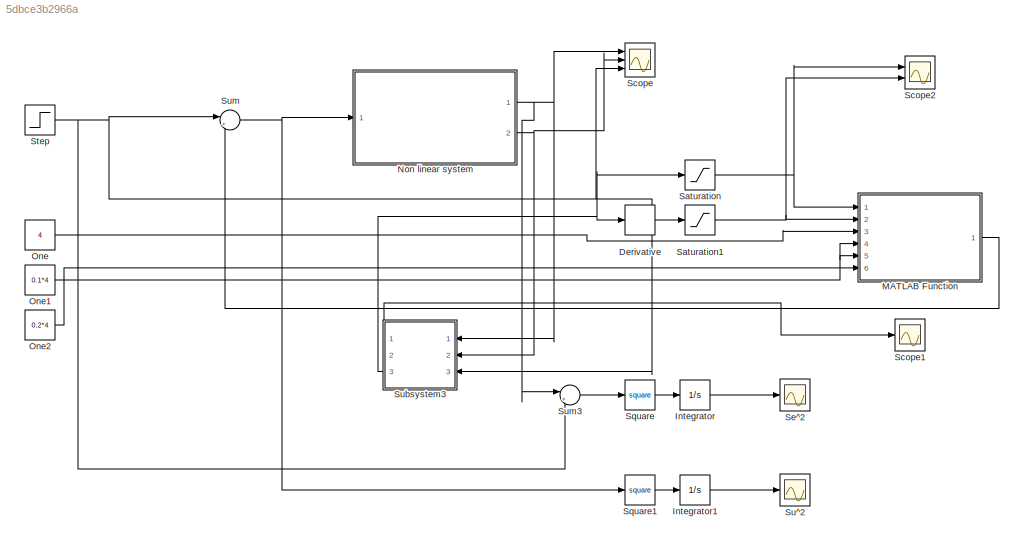
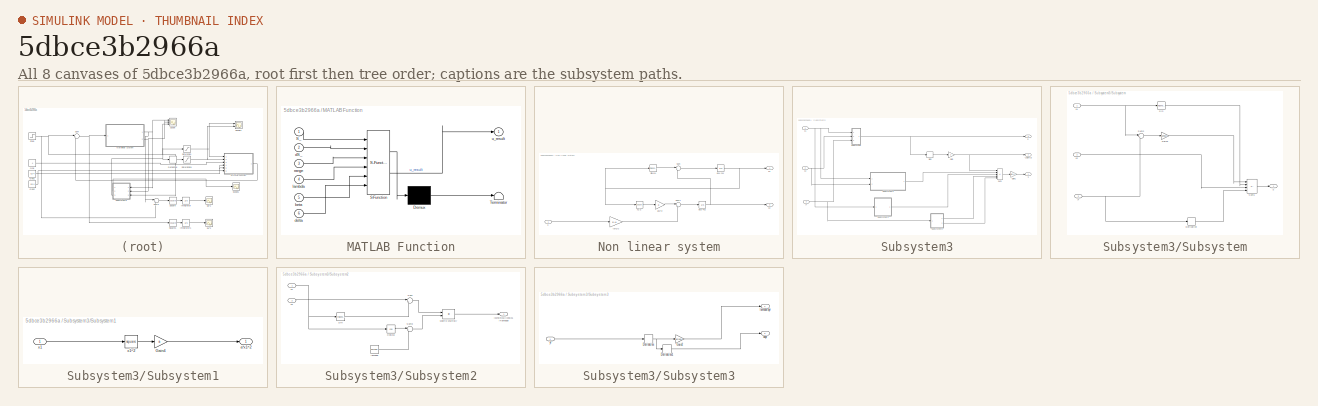
[diagram: thumbnail index - all 8 canvases of the model, root first then tree order]
MODEL slx_5dbce3b2966a
KIND model
CONFIG AbsTol = auto
CONFIG EnableMultiTasking = off
CONFIG FixedStep = auto
CONFIG MaxStep = auto
CONFIG MinStep = auto
CONFIG RelTol = 1e-3
CONFIG SampleTimeConstraint = Unconstrained
CONFIG Solver = VariableStepAuto
CONFIG SolverName = VariableStepAuto
CONFIG StartTime = 0.0
CONFIG StopTime = 100
BLOCK [Derivative] Derivative
BLOCK [Integrator] Integrator
  Ports = [1, 1]
BLOCK [Integrator] Integrator1
  Ports = [1, 1]
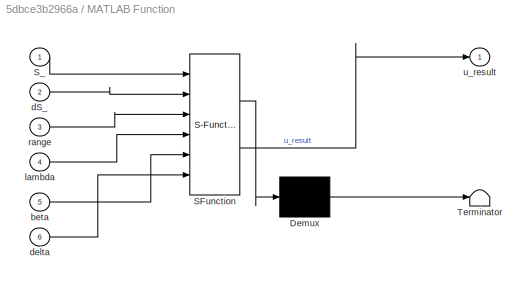
BLOCK [SubSystem] MATLAB Function
  ErrorFcn = Stateflow.Translate.translate
  PermitHierarchicalResolution = ExplicitOnly
  Ports = [6, 1]
  RequestExecContextInheritance = off
  SFBlockType = MATLAB Function
  TreatAsAtomicUnit = on
BLOCK [Demux] MATLAB Function/ Demux 
  Outputs = 1
  Ports = [1, 1]
BLOCK [S-Function] MATLAB Function/ SFunction 
  EnableBusSupport = on
  FunctionName = sf_sfun
  PortCounts = [6 2]
  Ports = [6, 2]
  SFcnIsStateOwnerBlock = off
  SFunctionDeploymentMode = off
  Tag = Stateflow S-Function 2
BLOCK [Terminator] MATLAB Function/ Terminator 
BLOCK [Inport] MATLAB Function/S_
BLOCK [Inport] MATLAB Function/beta
  Port = 5
BLOCK [Inport] MATLAB Function/dS_
  Port = 2
BLOCK [Inport] MATLAB Function/delta
  Port = 6
BLOCK [Inport] MATLAB Function/lambda
  Port = 4
BLOCK [Inport] MATLAB Function/range
  Port = 3
BLOCK [Outport] MATLAB Function/u_result
BLOCK [SubSystem] Non linear system
  Ports = [1, 2]
  RequestExecContextInheritance = off
BLOCK [Gain] Non linear system/(b+1)u
  Gain = b +1
BLOCK [Trigonometry] Non linear system/Sin(x1)
  Ports = [1, 1]
BLOCK [Sum] Non linear system/Sum
  Inputs = |++
  Ports = [2, 1]
BLOCK [Sum] Non linear system/Sum1
  Inputs = |++
  Ports = [2, 1]
BLOCK [Gain] Non linear system/ax1^2
  Gain = a
BLOCK [Integrator] Non linear system/dx1->x1
  Ports = [1, 1]
BLOCK [Integrator] Non linear system/dx2->x2
  Ports = [1, 1]
BLOCK [Inport] Non linear system/u
BLOCK [Outport] Non linear system/x1
BLOCK [Math] Non linear system/x1^2
  Operator = square
  Ports = [1, 1]
BLOCK [Outport] Non linear system/x2
  Port = 2
BLOCK [Constant] One
  OutDataTypeStr = Inherit: Inherit via back propagation
  Value = 4
BLOCK [Constant] One1
  OutDataTypeStr = Inherit: Inherit via back propagation
  Value = 0.1*4
BLOCK [Constant] One2
  OutDataTypeStr = Inherit: Inherit via back propagation
  Value = 0.2*4
BLOCK [Saturate] Saturation
  LowerLimit = -4
  UpperLimit = 4
BLOCK [Saturate] Saturation1
  LowerLimit = -4
  UpperLimit = 4
BLOCK [Scope] Scope
  Floating = off
  NumInputPorts = 3
  Ports = [3]
  ScopeSpecificationString = Simulink.scopes.TimeScopeBlockCfg('CurrentConfiguration', extmgr.ConfigurationSet(extmgr.Configuration('Core','General UI',true),extmgr.Configuration('Core','Source UI',true),extmgr.Configuration('Sources','WiredSimulink',true),extmgr.Configuration('Visuals','Time Domain',true,'SerializedDisplays',{struct('MinYLimReal','-1.07189','MaxYLimReal','1.23057','YLabelReal','','MinYLimMag','0.00000','MaxY...<+1570ch>
BLOCK [Scope] Scope1
  Floating = off
  NumInputPorts = 1
  Ports = [1]
  ScopeSpecificationString = Simulink.scopes.TimeScopeBlockCfg('CurrentConfiguration', extmgr.ConfigurationSet(extmgr.Configuration('Core','General UI',true),extmgr.Configuration('Core','Source UI',true),extmgr.Configuration('Sources','WiredSimulink',true,'DataLoggingVariableName','ScopeData1'),extmgr.Configuration('Visuals','Time Domain',true,'SerializedDisplays',{struct('MinYLimReal','-3.00000','MaxYLimReal','-1.00000','YLa...<+1461ch>
BLOCK [Scope] Scope2
  Floating = off
  NumInputPorts = 2
  Ports = [2]
  ScopeSpecificationString = Simulink.scopes.TimeScopeBlockCfg('CurrentConfiguration', extmgr.ConfigurationSet(extmgr.Configuration('Core','General UI',true),extmgr.Configuration('Core','Source UI',true),extmgr.Configuration('Sources','WiredSimulink',true,'DataLoggingVariableName','ScopeData1'),extmgr.Configuration('Visuals','Time Domain',true,'SerializedDisplays',{struct('MinYLimReal','-1.625','MaxYLimReal','4.625','YLabelRe...<+1396ch>
BLOCK [Scope] Se^2
  Floating = off
  NumInputPorts = 1
  Ports = [1]
  ScopeSpecificationString = Simulink.scopes.TimeScopeBlockCfg('CurrentConfiguration', extmgr.ConfigurationSet(extmgr.Configuration('Core','General UI',true),extmgr.Configuration('Core','Source UI',true),extmgr.Configuration('Sources','WiredSimulink',true,'DataLoggingVariableName','ScopeData1'),extmgr.Configuration('Visuals','Time Domain',true,'SerializedDisplays',{struct('MinYLimReal','-0.07776','MaxYLimReal','0.6998','YLabe...<+1365ch>
BLOCK [Math] Square
  Operator = square
  Ports = [1, 1]
BLOCK [Math] Square1
  Operator = square
  Ports = [1, 1]
BLOCK [Step] Step
  SampleTime = 0
  Time = 0
BLOCK [Scope] Su^2
  Floating = off
  NumInputPorts = 1
  Ports = [1]
  ScopeSpecificationString = Simulink.scopes.TimeScopeBlockCfg('CurrentConfiguration', extmgr.ConfigurationSet(extmgr.Configuration('Core','General UI',true),extmgr.Configuration('Core','Source UI',true),extmgr.Configuration('Sources','WiredSimulink',true,'DataLoggingVariableName','ScopeData2'),extmgr.Configuration('Visuals','Time Domain',true,'SerializedDisplays',{struct('MinYLimReal','-3.2157','MaxYLimReal','28.94133','YLab...<+1372ch>
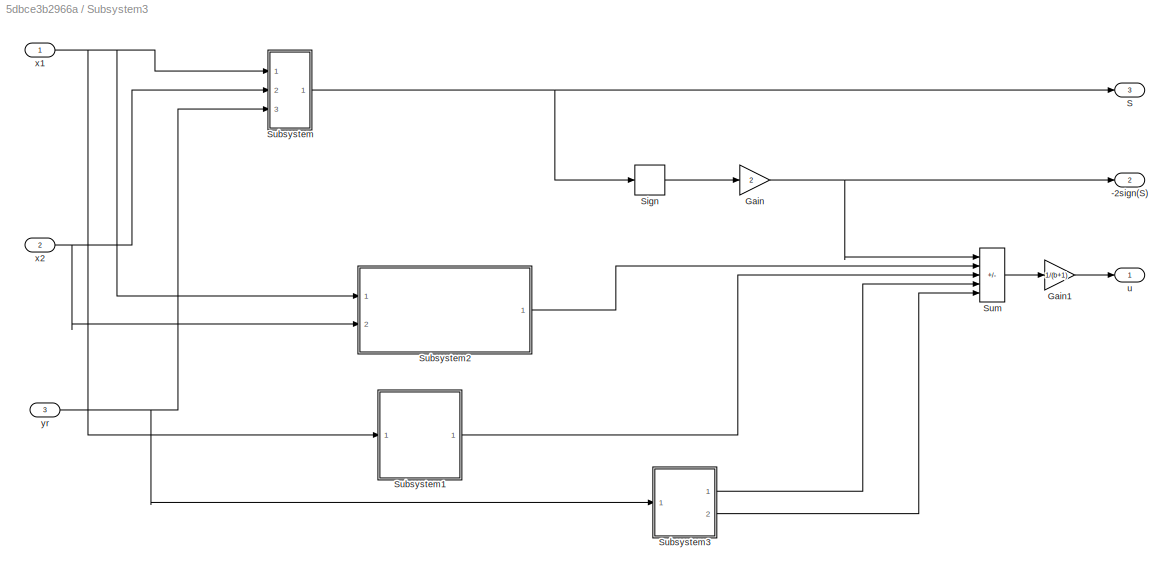
BLOCK [SubSystem] Subsystem3
  NameLocation = top
  Ports = [3, 3]
  RequestExecContextInheritance = off
BLOCK [Outport] Subsystem3/-2sign(S)
  Port = 2
BLOCK [Gain] Subsystem3/Gain
  Gain = 2
BLOCK [Gain] Subsystem3/Gain1
  Gain = 1/(b+1)
BLOCK [Outport] Subsystem3/S
  Port = 3
BLOCK [Signum] Subsystem3/Sign
BLOCK [SubSystem] Subsystem3/Subsystem
  Ports = [3, 1]
  RequestExecContextInheritance = off
BLOCK [Derivative] Subsystem3/Subsystem/Derivative
BLOCK [Gain] Subsystem3/Subsystem/Gain2
  Gain = lambda
BLOCK [Outport] Subsystem3/Subsystem/S
BLOCK [Trigonometry] Subsystem3/Subsystem/Sin
  Ports = [1, 1]
BLOCK [Sum] Subsystem3/Subsystem/Sum1
  IconShape = rectangular
  Inputs = |+++-
  Ports = [4, 1]
BLOCK [Sum] Subsystem3/Subsystem/Sum2
  Inputs = |+-
  Ports = [2, 1]
BLOCK [Inport] Subsystem3/Subsystem/x1
BLOCK [Inport] Subsystem3/Subsystem/x2
  Port = 2
BLOCK [Inport] Subsystem3/Subsystem/yr
  Port = 3
BLOCK [SubSystem] Subsystem3/Subsystem1
  Ports = [1, 1]
  RequestExecContextInheritance = off
BLOCK [Gain] Subsystem3/Subsystem1/Gain4
  Gain = a
BLOCK [Outport] Subsystem3/Subsystem1/a*x1^2
BLOCK [Inport] Subsystem3/Subsystem1/x1 
BLOCK [Math] Subsystem3/Subsystem1/x1^2
  Operator = square
  Ports = [1, 1]
BLOCK [SubSystem] Subsystem3/Subsystem2
  Ports = [2, 1]
  RequestExecContextInheritance = off
BLOCK [Outport] Subsystem3/Subsystem2/(x2+sin(x1))(cos(x1)+lambda)
BLOCK [Trigonometry] Subsystem3/Subsystem2/Cos(x1)
  Operator = cos
  Ports = [1, 1]
BLOCK [Product] Subsystem3/Subsystem2/Matrix Multiply
  Ports = [2, 1]
BLOCK [Trigonometry] Subsystem3/Subsystem2/Sin
  Ports = [1, 1]
BLOCK [Sum] Subsystem3/Subsystem2/Sum
  Inputs = |++
  Ports = [2, 1]
BLOCK [Sum] Subsystem3/Subsystem2/Sum3
  Inputs = |++
  Ports = [2, 1]
BLOCK [Constant] Subsystem3/Subsystem2/lambda
  OutDataTypeStr = Inherit: Inherit via back propagation
  Value = lambda
BLOCK [Inport] Subsystem3/Subsystem2/x1 
BLOCK [Inport] Subsystem3/Subsystem2/x2
  Port = 2
BLOCK [SubSystem] Subsystem3/Subsystem3
  Ports = [1, 2]
  RequestExecContextInheritance = off
BLOCK [Derivative] Subsystem3/Subsystem3/Derivative
BLOCK [Derivative] Subsystem3/Subsystem3/Derivative1
BLOCK [Gain] Subsystem3/Subsystem3/Gain2
  Gain = lambda
BLOCK [Outport] Subsystem3/Subsystem3/ddyr
  Port = 2
BLOCK [Outport] Subsystem3/Subsystem3/lambda*dyr
BLOCK [Inport] Subsystem3/Subsystem3/yr
BLOCK [Sum] Subsystem3/Sum
  IconShape = rectangular
  Inputs = |---++
  Ports = [5, 1]
BLOCK [Outport] Subsystem3/u
BLOCK [Inport] Subsystem3/x1
BLOCK [Inport] Subsystem3/x2
  Port = 2
BLOCK [Inport] Subsystem3/yr
  Port = 3
BLOCK [Sum] Sum
  Inputs = |++
  Ports = [2, 1]
BLOCK [Sum] Sum3
  Inputs = |+-
  Ports = [2, 1]
LINE Derivative:1 -> Saturation1:1
LINE Integrator1:1 -> Su^2:1
LINE Integrator:1 -> Se^2:1
LINE MATLAB Function:1 -> Sum:2
LINE Non linear system/(b+1)u:1 -> Non linear system/Sum1:2
LINE Non linear system/Sin(x1):1 -> Non linear system/Sum:1
LINE Non linear system/Sum1:1 -> Non linear system/dx2->x2:1
LINE Non linear system/Sum:1 -> Non linear system/dx1->x1:1
LINE Non linear system/ax1^2:1 -> Non linear system/Sum1:1
NET Non linear system/dx1->x1:1 -> Non linear system/Sin(x1):1, Non linear system/x1:1, Non linear system/x1^2:1
NET Non linear system/dx2->x2:1 -> Non linear system/Sum:2, Non linear system/x2:1
LINE Non linear system/u:1 -> Non linear system/(b+1)u:1
LINE Non linear system/x1^2:1 -> Non linear system/ax1^2:1
NET Non linear system:1 -> Scope:1, Subsystem3:1, Sum3:1
NET Non linear system:2 -> Scope:2, Subsystem3:2
NET One1:1 -> MATLAB Function:4, MATLAB Function:5
LINE One2:1 -> MATLAB Function:6
LINE One:1 -> MATLAB Function:3
NET Saturation1:1 -> MATLAB Function:2, Scope2:2
NET Saturation:1 -> MATLAB Function:1, Scope2:1
LINE Square1:1 -> Integrator1:1
LINE Square:1 -> Integrator:1
NET Step:1 -> Scope:3, Subsystem3:3, Sum3:2, Sum:1
LINE Subsystem3/Gain1:1 -> Subsystem3/u:1
NET Subsystem3/Gain:1 -> Subsystem3/-2sign(S):1, Subsystem3/Sum:1
LINE Subsystem3/Sign:1 -> Subsystem3/Gain:1
LINE Subsystem3/Subsystem/Derivative:1 -> Subsystem3/Subsystem/Sum1:4
LINE Subsystem3/Subsystem/Gain2:1 -> Subsystem3/Subsystem/Sum1:1
LINE Subsystem3/Subsystem/Sin:1 -> Subsystem3/Subsystem/Sum1:2
LINE Subsystem3/Subsystem/Sum1:1 -> Subsystem3/Subsystem/S:1
LINE Subsystem3/Subsystem/Sum2:1 -> Subsystem3/Subsystem/Gain2:1
NET Subsystem3/Subsystem/x1:1 -> Subsystem3/Subsystem/Sin:1, Subsystem3/Subsystem/Sum2:1
LINE Subsystem3/Subsystem/x2:1 -> Subsystem3/Subsystem/Sum1:3
NET Subsystem3/Subsystem/yr:1 -> Subsystem3/Subsystem/Derivative:1, Subsystem3/Subsystem/Sum2:2
LINE Subsystem3/Subsystem1/Gain4:1 -> Subsystem3/Subsystem1/a*x1^2:1
LINE Subsystem3/Subsystem1/x1 :1 -> Subsystem3/Subsystem1/x1^2:1
LINE Subsystem3/Subsystem1/x1^2:1 -> Subsystem3/Subsystem1/Gain4:1
LINE Subsystem3/Subsystem1:1 -> Subsystem3/Sum:3
LINE Subsystem3/Subsystem2/Cos(x1):1 -> Subsystem3/Subsystem2/Sum3:1
LINE Subsystem3/Subsystem2/Matrix Multiply:1 -> Subsystem3/Subsystem2/(x2+sin(x1))(cos(x1)+lambda):1
LINE Subsystem3/Subsystem2/Sin:1 -> Subsystem3/Subsystem2/Sum:2
LINE Subsystem3/Subsystem2/Sum3:1 -> Subsystem3/Subsystem2/Matrix Multiply:2
LINE Subsystem3/Subsystem2/Sum:1 -> Subsystem3/Subsystem2/Matrix Multiply:1
LINE Subsystem3/Subsystem2/lambda:1 -> Subsystem3/Subsystem2/Sum3:2
NET Subsystem3/Subsystem2/x1 :1 -> Subsystem3/Subsystem2/Cos(x1):1, Subsystem3/Subsystem2/Sin:1
LINE Subsystem3/Subsystem2/x2:1 -> Subsystem3/Subsystem2/Sum:1
LINE Subsystem3/Subsystem2:1 -> Subsystem3/Sum:2
LINE Subsystem3/Subsystem3/Derivative1:1 -> Subsystem3/Subsystem3/ddyr:1
NET Subsystem3/Subsystem3/Derivative:1 -> Subsystem3/Subsystem3/Derivative1:1, Subsystem3/Subsystem3/Gain2:1
LINE Subsystem3/Subsystem3/Gain2:1 -> Subsystem3/Subsystem3/lambda*dyr:1
LINE Subsystem3/Subsystem3/yr:1 -> Subsystem3/Subsystem3/Derivative:1
LINE Subsystem3/Subsystem3:1 -> Subsystem3/Sum:4
LINE Subsystem3/Subsystem3:2 -> Subsystem3/Sum:5
NET Subsystem3/Subsystem:1 -> Subsystem3/S:1, Subsystem3/Sign:1
LINE Subsystem3/Sum:1 -> Subsystem3/Gain1:1
NET Subsystem3/x1:1 -> Subsystem3/Subsystem1:1, Subsystem3/Subsystem2:1, Subsystem3/Subsystem:1
NET Subsystem3/x2:1 -> Subsystem3/Subsystem2:2, Subsystem3/Subsystem:2
NET Subsystem3/yr:1 -> Subsystem3/Subsystem3:1, Subsystem3/Subsystem:3
LINE Subsystem3:2 -> Scope1:1
NET Subsystem3:3 -> Derivative:1, Saturation:1
LINE Sum3:1 -> Square:1
NET Sum:1 -> Non linear system:1, Square1:1
note: NET lines group one-source signal fan-out (src -> all destinations, sorted); 1:1 wires keep LINE
CHART MATLAB Function states=1 transitions=1
  STATE_LABEL 'eML_blk_kernel()'
  STATE_LABEL 'SCRIPT:\nfunction u_result = fuzzy(S_, dS_, range, lambda, beta , delta)\n%% Fuzzy input\n% input S\nstep = 0.01\nS = -range:step:range;\n\n\nSp = 1/lambda*S;\nSp(S >= lambda ) = 1;\nSp(S <= 0 ) = 0;\n\nSn = -1/lambda*S;\nSn(S <= -lambda ) = 1;\nSn(S >= 0 ) = 0;\n\nS0 = -1/lambda*abs(S) + 1;\nS0(S <= -lambda ) = 0;\nS0(S >= lambda ) = 0;\n\n \n% input dS\ndS = -range:step:range;\n\ndSp = 1/beta*dS;\ndSp(dS >= beta ) = 1;\n...<+1319ch>'
CHART  states=0 transitions=0
